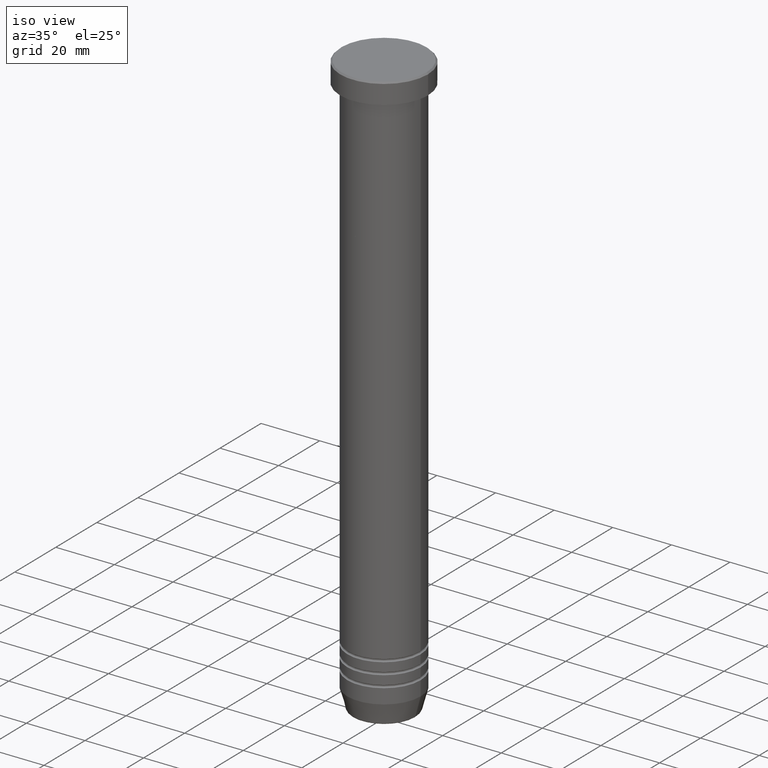
[diagram: clean part render]
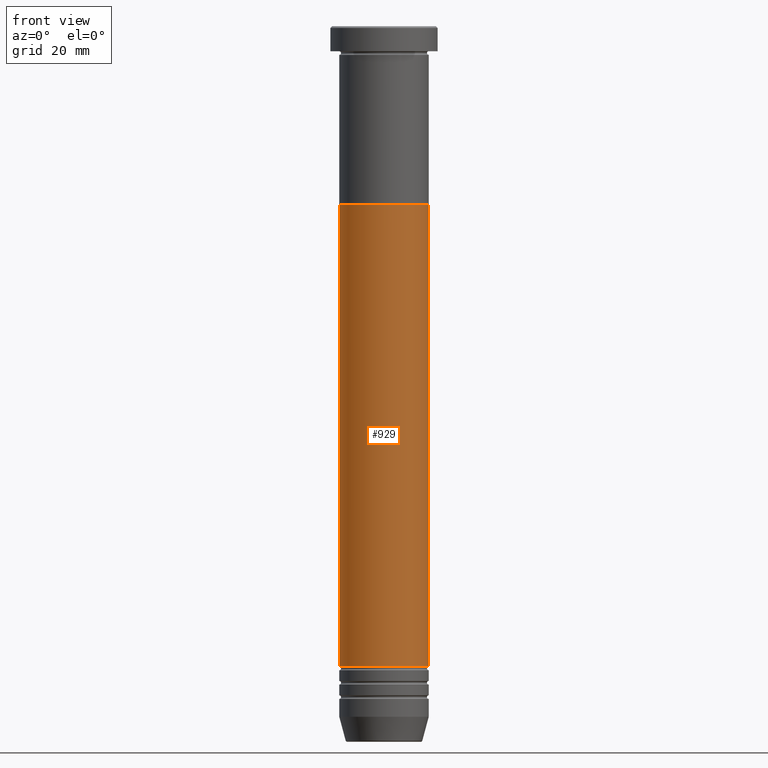
[diagram: tour spotlight — one face highlighted and labeled with its STEP entity id]
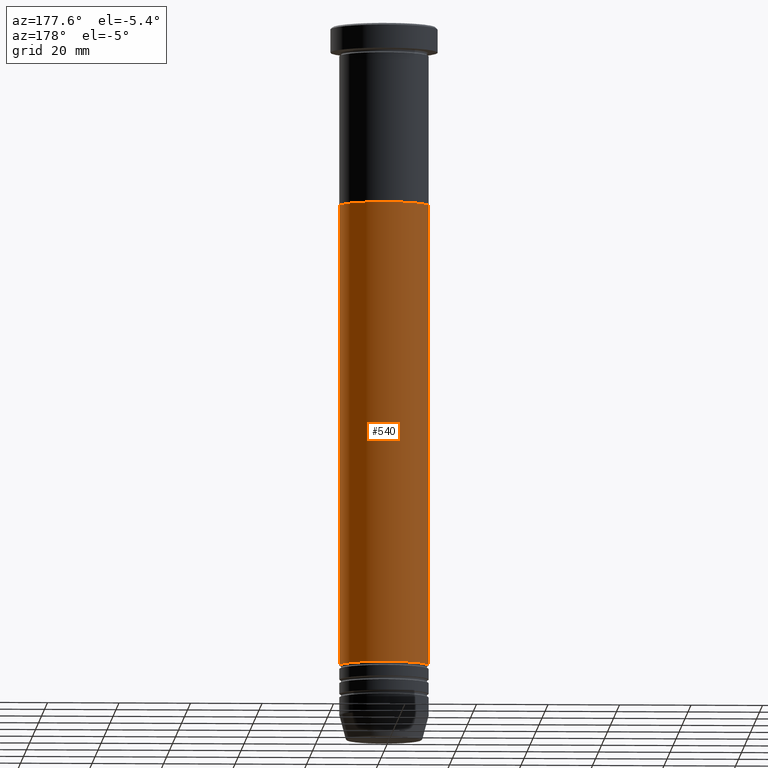
[diagram: tour spotlight — one face highlighted and labeled with its STEP entity id]
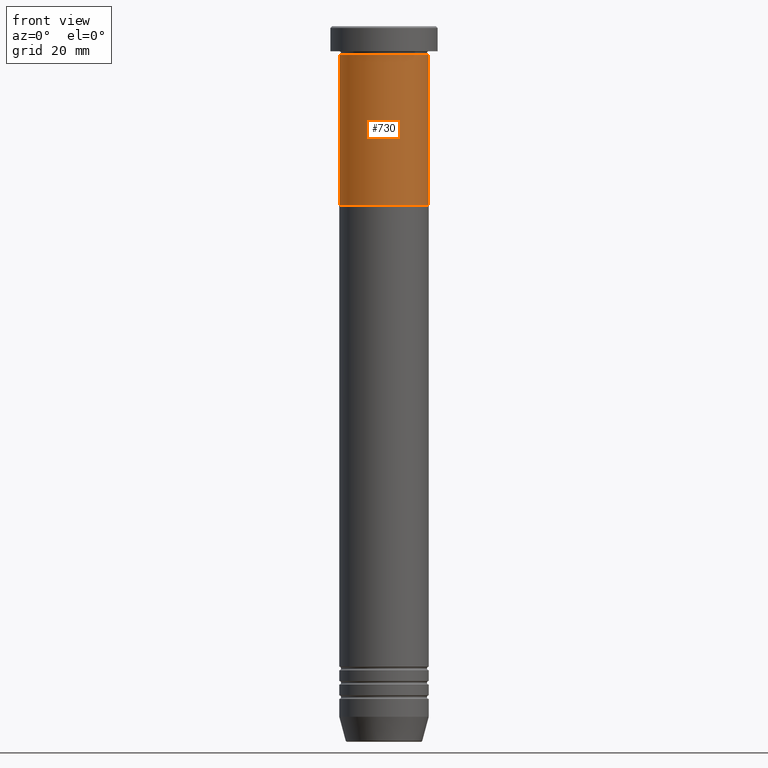
[diagram: tour spotlight — one face highlighted and labeled with its STEP entity id]
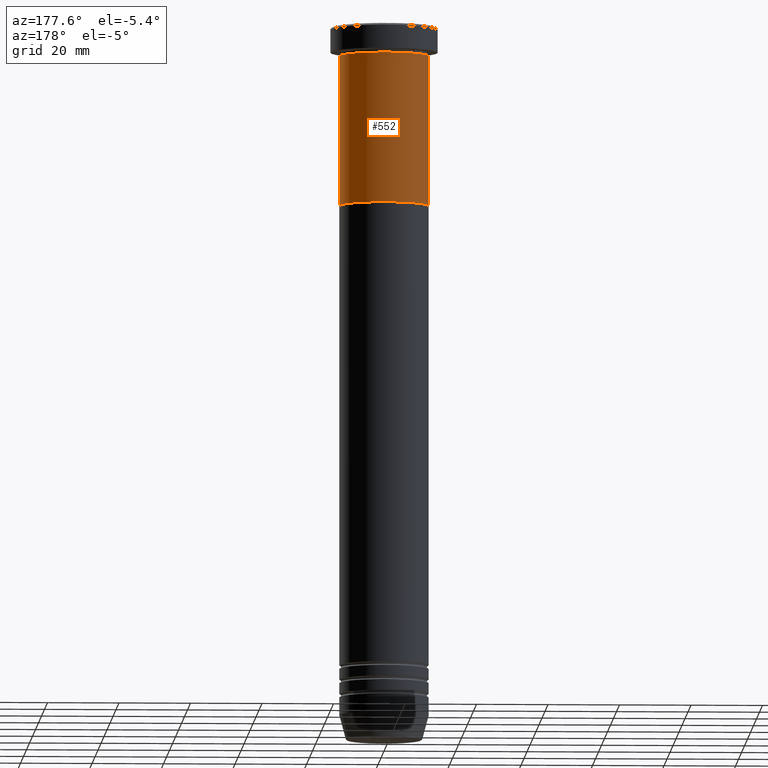
[diagram: tour spotlight — one face highlighted and labeled with its STEP entity id]
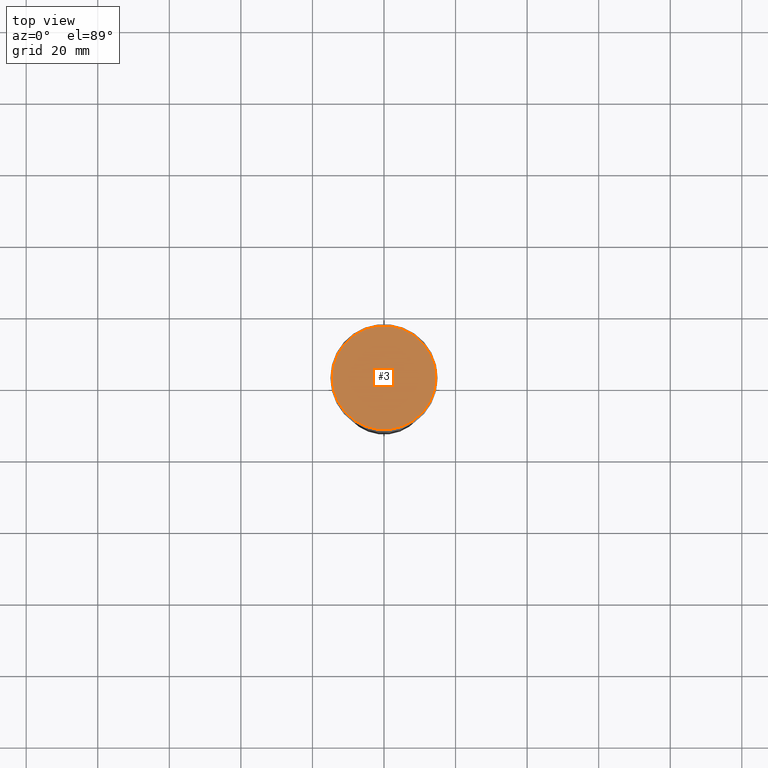
[diagram: tour spotlight — one face highlighted and labeled with its STEP entity id]
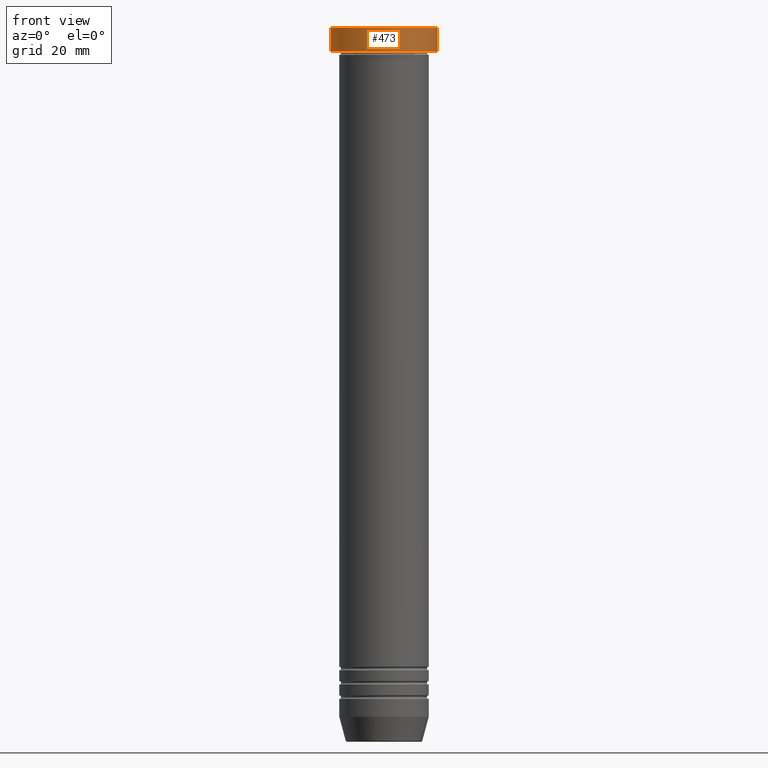
[diagram: tour spotlight — one face highlighted and labeled with its STEP entity id]
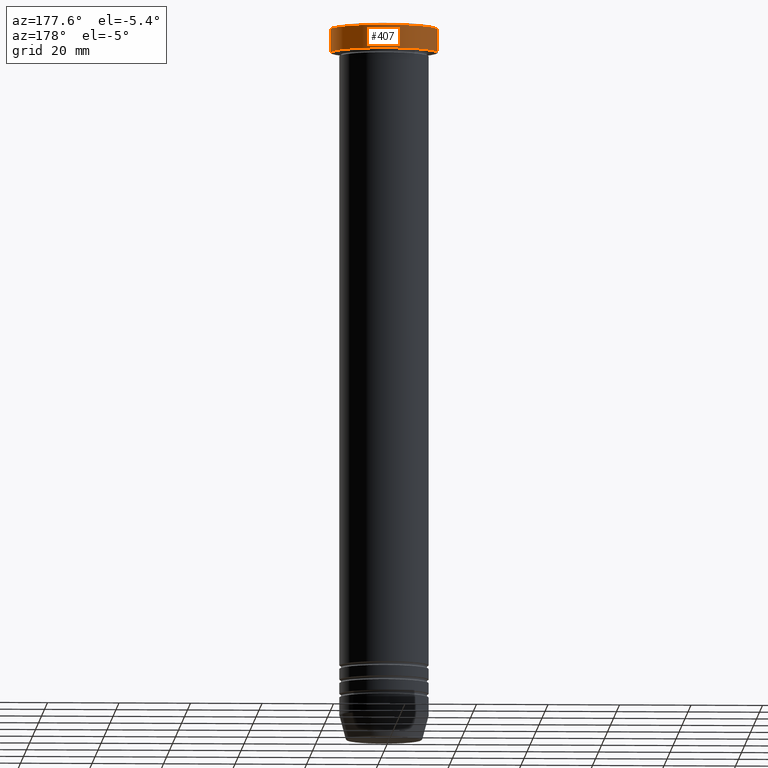
[diagram: tour spotlight — one face highlighted and labeled with its STEP entity id]
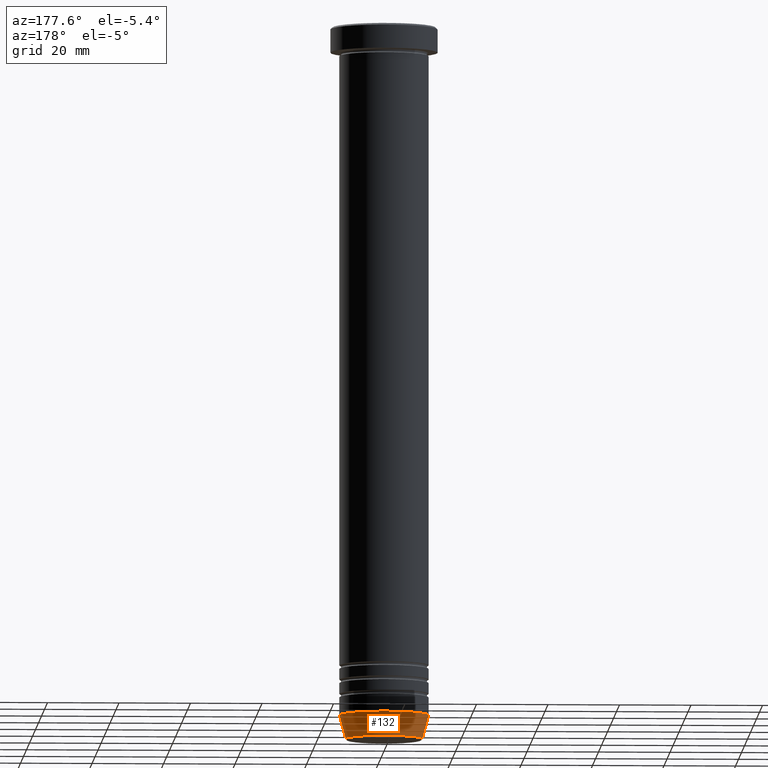
[diagram: tour spotlight — one face highlighted and labeled with its STEP entity id]
A machine part: a face-by-face anatomy tour. The part has 39 B-rep faces; the first image is the clean iso view, then the 8 largest visible faces are spotlighted one at a time (largest first), each with its STEP entity span.

Face 1 — front view, entity #929. In plain terms, the highlighted cylindrical surface (partial cylindrical patch) has radius 12.5 mm, axis along (-0, -0, 1).
Definition (entity closure, byte-faithful):
#4 = CARTESIAN_POINT ( 'NONE',  ( 12.49999999999999645, 0.000000000000000000, 0.000000000000000000 ) ) ;
#27 = CARTESIAN_POINT ( 'NONE',  ( -12.50000000000000000, 1.530808498934191521E-15, -50.00000000000000000 ) ) ;
#89 = EDGE_CURVE ( 'NONE', #199, #162, #415, .T. ) ;
#91 = VECTOR ( 'NONE', #216, 1000.000000000000000 ) ;
#109 = AXIS2_PLACEMENT_3D ( 'NONE', #254, #320, #241 ) ;
#134 = EDGE_CURVE ( 'NONE', #655, #162, #532, .T. ) ;
#162 = VERTEX_POINT ( 'NONE', #729 ) ;
#166 = VERTEX_POINT ( 'NONE', #920 ) ;
#174 = CYLINDRICAL_SURFACE ( 'NONE', #109, 12.49999999999999645 ) ;
#192 = CARTESIAN_POINT ( 'NONE',  ( 12.49999999999999289, 0.000000000000000000, -179.0000000000000000 ) ) ;
#199 = VERTEX_POINT ( 'NONE', #192 ) ;
#202 = ORIENTED_EDGE ( 'NONE', *, *, #661, .T. ) ;
#210 = CARTESIAN_POINT ( 'NONE',  ( -12.49999999999999645, 1.530808498934191127E-15, 0.000000000000000000 ) ) ;
#216 = DIRECTION ( 'NONE',  ( -0.000000000000000000, -0.000000000000000000, 1.000000000000000000 ) ) ;
#241 = DIRECTION ( 'NONE',  ( 1.000000000000000000, 0.000000000000000000, 0.000000000000000000 ) ) ;
#254 = CARTESIAN_POINT ( 'NONE',  ( 0.000000000000000000, 0.000000000000000000, 0.000000000000000000 ) ) ;
#262 = DIRECTION ( 'NONE',  ( 1.000000000000000000, 0.000000000000000000, 0.000000000000000000 ) ) ;
#283 = DIRECTION ( 'NONE',  ( 1.000000000000000000, 0.000000000000000000, 0.000000000000000000 ) ) ;
#309 = VECTOR ( 'NONE', #484, 1000.000000000000000 ) ;
#320 = DIRECTION ( 'NONE',  ( -0.000000000000000000, -0.000000000000000000, 1.000000000000000000 ) ) ;
#322 = CARTESIAN_POINT ( 'NONE',  ( 0.000000000000000000, 0.000000000000000000, -50.00000000000000000 ) ) ;
#330 = CIRCLE ( 'NONE', #756, 12.49999999999999289 ) ;
#415 = LINE ( 'NONE', #4, #309 ) ;
#484 = DIRECTION ( 'NONE',  ( -0.000000000000000000, -0.000000000000000000, 1.000000000000000000 ) ) ;
#485 = ORIENTED_EDGE ( 'NONE', *, *, #811, .F. ) ;
#506 = CARTESIAN_POINT ( 'NONE',  ( 0.000000000000000000, 0.000000000000000000, -179.0000000000000000 ) ) ;
#532 = CIRCLE ( 'NONE', #732, 12.50000000000000000 ) ;
#655 = VERTEX_POINT ( 'NONE', #27 ) ;
#661 = EDGE_CURVE ( 'NONE', #166, #199, #330, .T. ) ;
#729 = CARTESIAN_POINT ( 'NONE',  ( 12.50000000000000000, 0.000000000000000000, -50.00000000000000000 ) ) ;
#732 = AXIS2_PLACEMENT_3D ( 'NONE', #322, #812, #262 ) ;
#749 = ORIENTED_EDGE ( 'NONE', *, *, #134, .F. ) ;
#756 = AXIS2_PLACEMENT_3D ( 'NONE', #506, #760, #283 ) ;
#760 = DIRECTION ( 'NONE',  ( -0.000000000000000000, -0.000000000000000000, 1.000000000000000000 ) ) ;
#809 = FACE_OUTER_BOUND ( 'NONE', #1053, .T. ) ;
#811 = EDGE_CURVE ( 'NONE', #166, #655, #1037, .T. ) ;
#812 = DIRECTION ( 'NONE',  ( -0.000000000000000000, -0.000000000000000000, 1.000000000000000000 ) ) ;
#880 = ORIENTED_EDGE ( 'NONE', *, *, #89, .T. ) ;
#920 = CARTESIAN_POINT ( 'NONE',  ( -12.49999999999999289, 1.530808498934190930E-15, -179.0000000000000000 ) ) ;
#929 = ADVANCED_FACE ( 'NONE', ( #809 ), #174, .T. ) ;
#1037 = LINE ( 'NONE', #210, #91 ) ;
#1053 = EDGE_LOOP ( 'NONE', ( #485, #202, #880, #749 ) ) ;

Face 2 — auxiliary view, entity #540. In plain terms, the highlighted cylindrical surface (partial cylindrical patch) has radius 12.5 mm, axis along (-0, -0, 1).
Definition (entity closure, byte-faithful):
#4 = CARTESIAN_POINT ( 'NONE',  ( 12.49999999999999645, 0.000000000000000000, 0.000000000000000000 ) ) ;
#27 = CARTESIAN_POINT ( 'NONE',  ( -12.50000000000000000, 1.530808498934191521E-15, -50.00000000000000000 ) ) ;
#42 = AXIS2_PLACEMENT_3D ( 'NONE', #650, #799, #988 ) ;
#89 = EDGE_CURVE ( 'NONE', #199, #162, #415, .T. ) ;
#91 = VECTOR ( 'NONE', #216, 1000.000000000000000 ) ;
#92 = ORIENTED_EDGE ( 'NONE', *, *, #89, .F. ) ;
#96 = EDGE_LOOP ( 'NONE', ( #345, #932, #572, #92 ) ) ;
#141 = CARTESIAN_POINT ( 'NONE',  ( 0.000000000000000000, 0.000000000000000000, -50.00000000000000000 ) ) ;
#162 = VERTEX_POINT ( 'NONE', #729 ) ;
#166 = VERTEX_POINT ( 'NONE', #920 ) ;
#192 = CARTESIAN_POINT ( 'NONE',  ( 12.49999999999999289, 0.000000000000000000, -179.0000000000000000 ) ) ;
#199 = VERTEX_POINT ( 'NONE', #192 ) ;
#210 = CARTESIAN_POINT ( 'NONE',  ( -12.49999999999999645, 1.530808498934191127E-15, 0.000000000000000000 ) ) ;
#216 = DIRECTION ( 'NONE',  ( -0.000000000000000000, -0.000000000000000000, 1.000000000000000000 ) ) ;
#243 = DIRECTION ( 'NONE',  ( 1.000000000000000000, 0.000000000000000000, 0.000000000000000000 ) ) ;
#295 = AXIS2_PLACEMENT_3D ( 'NONE', #1042, #559, #243 ) ;
#309 = VECTOR ( 'NONE', #484, 1000.000000000000000 ) ;
#345 = ORIENTED_EDGE ( 'NONE', *, *, #462, .T. ) ;
#394 = CIRCLE ( 'NONE', #968, 12.50000000000000000 ) ;
#400 = CYLINDRICAL_SURFACE ( 'NONE', #42, 12.49999999999999645 ) ;
#415 = LINE ( 'NONE', #4, #309 ) ;
#439 = EDGE_CURVE ( 'NONE', #162, #655, #394, .T. ) ;
#452 = DIRECTION ( 'NONE',  ( -0.000000000000000000, -0.000000000000000000, 1.000000000000000000 ) ) ;
#462 = EDGE_CURVE ( 'NONE', #199, #166, #715, .T. ) ;
#484 = DIRECTION ( 'NONE',  ( -0.000000000000000000, -0.000000000000000000, 1.000000000000000000 ) ) ;
#498 = FACE_OUTER_BOUND ( 'NONE', #96, .T. ) ;
#540 = ADVANCED_FACE ( 'NONE', ( #498 ), #400, .T. ) ;
#559 = DIRECTION ( 'NONE',  ( -0.000000000000000000, -0.000000000000000000, 1.000000000000000000 ) ) ;
#572 = ORIENTED_EDGE ( 'NONE', *, *, #439, .F. ) ;
#650 = CARTESIAN_POINT ( 'NONE',  ( 0.000000000000000000, 0.000000000000000000, 0.000000000000000000 ) ) ;
#655 = VERTEX_POINT ( 'NONE', #27 ) ;
#715 = CIRCLE ( 'NONE', #295, 12.49999999999999289 ) ;
#729 = CARTESIAN_POINT ( 'NONE',  ( 12.50000000000000000, 0.000000000000000000, -50.00000000000000000 ) ) ;
#776 = DIRECTION ( 'NONE',  ( 1.000000000000000000, 0.000000000000000000, 0.000000000000000000 ) ) ;
#799 = DIRECTION ( 'NONE',  ( -0.000000000000000000, -0.000000000000000000, 1.000000000000000000 ) ) ;
#811 = EDGE_CURVE ( 'NONE', #166, #655, #1037, .T. ) ;
#920 = CARTESIAN_POINT ( 'NONE',  ( -12.49999999999999289, 1.530808498934190930E-15, -179.0000000000000000 ) ) ;
#932 = ORIENTED_EDGE ( 'NONE', *, *, #811, .T. ) ;
#968 = AXIS2_PLACEMENT_3D ( 'NONE', #141, #452, #776 ) ;
#988 = DIRECTION ( 'NONE',  ( 1.000000000000000000, 0.000000000000000000, 0.000000000000000000 ) ) ;
#1037 = LINE ( 'NONE', #210, #91 ) ;
#1042 = CARTESIAN_POINT ( 'NONE',  ( 0.000000000000000000, 0.000000000000000000, -179.0000000000000000 ) ) ;

Face 3 — front view, entity #730. In plain terms, the highlighted cylindrical surface (partial cylindrical patch) has radius 12.5 mm, axis along (-0, -0, 1).
Definition (entity closure, byte-faithful):
#8 = VERTEX_POINT ( 'NONE', #555 ) ;
#38 = DIRECTION ( 'NONE',  ( -0.000000000000000000, -0.000000000000000000, 1.000000000000000000 ) ) ;
#75 = AXIS2_PLACEMENT_3D ( 'NONE', #742, #682, #763 ) ;
#173 = ORIENTED_EDGE ( 'NONE', *, *, #282, .F. ) ;
#196 = FACE_OUTER_BOUND ( 'NONE', #454, .T. ) ;
#201 = DIRECTION ( 'NONE',  ( -0.000000000000000000, -0.000000000000000000, 1.000000000000000000 ) ) ;
#270 = CARTESIAN_POINT ( 'NONE',  ( -12.50000000000000000, 1.530808498934191521E-15, -50.00000000000000000 ) ) ;
#282 = EDGE_CURVE ( 'NONE', #456, #8, #801, .T. ) ;
#312 = LINE ( 'NONE', #862, #701 ) ;
#323 = EDGE_CURVE ( 'NONE', #852, #8, #1038, .T. ) ;
#326 = VECTOR ( 'NONE', #374, 1000.000000000000000 ) ;
#344 = DIRECTION ( 'NONE',  ( 1.000000000000000000, 0.000000000000000000, 0.000000000000000000 ) ) ;
#347 = AXIS2_PLACEMENT_3D ( 'NONE', #440, #38, #1007 ) ;
#373 = EDGE_CURVE ( 'NONE', #721, #456, #312, .T. ) ;
#374 = DIRECTION ( 'NONE',  ( -0.000000000000000000, -0.000000000000000000, 1.000000000000000000 ) ) ;
#440 = CARTESIAN_POINT ( 'NONE',  ( 0.000000000000000000, 0.000000000000000000, -8.000000000000000000 ) ) ;
#454 = EDGE_LOOP ( 'NONE', ( #797, #1028, #504, #173 ) ) ;
#456 = VERTEX_POINT ( 'NONE', #791 ) ;
#458 = CARTESIAN_POINT ( 'NONE',  ( 12.50000000000000000, 0.000000000000000000, 0.000000000000000000 ) ) ;
#504 = ORIENTED_EDGE ( 'NONE', *, *, #323, .T. ) ;
#543 = DIRECTION ( 'NONE',  ( -0.000000000000000000, -0.000000000000000000, 1.000000000000000000 ) ) ;
#555 = CARTESIAN_POINT ( 'NONE',  ( 12.50000000000000000, 0.000000000000000000, -8.000000000000000000 ) ) ;
#682 = DIRECTION ( 'NONE',  ( -0.000000000000000000, -0.000000000000000000, 1.000000000000000000 ) ) ;
#684 = CARTESIAN_POINT ( 'NONE',  ( 0.000000000000000000, 0.000000000000000000, 0.000000000000000000 ) ) ;
#701 = VECTOR ( 'NONE', #543, 1000.000000000000000 ) ;
#721 = VERTEX_POINT ( 'NONE', #270 ) ;
#730 = ADVANCED_FACE ( 'NONE', ( #196 ), #748, .T. ) ;
#742 = CARTESIAN_POINT ( 'NONE',  ( 0.000000000000000000, 0.000000000000000000, -50.00000000000000000 ) ) ;
#748 = CYLINDRICAL_SURFACE ( 'NONE', #1003, 12.50000000000000000 ) ;
#763 = DIRECTION ( 'NONE',  ( 1.000000000000000000, 0.000000000000000000, 0.000000000000000000 ) ) ;
#791 = CARTESIAN_POINT ( 'NONE',  ( -12.50000000000000000, 1.530808498934191521E-15, -8.000000000000000000 ) ) ;
#797 = ORIENTED_EDGE ( 'NONE', *, *, #373, .F. ) ;
#801 = CIRCLE ( 'NONE', #347, 12.50000000000000000 ) ;
#852 = VERTEX_POINT ( 'NONE', #865 ) ;
#862 = CARTESIAN_POINT ( 'NONE',  ( -12.50000000000000000, 1.530808498934191521E-15, 0.000000000000000000 ) ) ;
#865 = CARTESIAN_POINT ( 'NONE',  ( 12.50000000000000000, 0.000000000000000000, -50.00000000000000000 ) ) ;
#877 = CIRCLE ( 'NONE', #75, 12.50000000000000000 ) ;
#1003 = AXIS2_PLACEMENT_3D ( 'NONE', #684, #201, #344 ) ;
#1007 = DIRECTION ( 'NONE',  ( 1.000000000000000000, 0.000000000000000000, 0.000000000000000000 ) ) ;
#1028 = ORIENTED_EDGE ( 'NONE', *, *, #1056, .T. ) ;
#1038 = LINE ( 'NONE', #458, #326 ) ;
#1056 = EDGE_CURVE ( 'NONE', #721, #852, #877, .T. ) ;

Face 4 — auxiliary view, entity #552. In plain terms, the highlighted cylindrical surface (partial cylindrical patch) has radius 12.5 mm, axis along (-0, -0, 1).
Definition (entity closure, byte-faithful):
#8 = VERTEX_POINT ( 'NONE', #555 ) ;
#65 = CARTESIAN_POINT ( 'NONE',  ( 0.000000000000000000, 0.000000000000000000, -8.000000000000000000 ) ) ;
#101 = CARTESIAN_POINT ( 'NONE',  ( 0.000000000000000000, 0.000000000000000000, -50.00000000000000000 ) ) ;
#145 = ORIENTED_EDGE ( 'NONE', *, *, #404, .F. ) ;
#211 = EDGE_LOOP ( 'NONE', ( #391, #232, #145, #777 ) ) ;
#215 = EDGE_CURVE ( 'NONE', #852, #721, #277, .T. ) ;
#232 = ORIENTED_EDGE ( 'NONE', *, *, #373, .T. ) ;
#255 = DIRECTION ( 'NONE',  ( 1.000000000000000000, 0.000000000000000000, 0.000000000000000000 ) ) ;
#270 = CARTESIAN_POINT ( 'NONE',  ( -12.50000000000000000, 1.530808498934191521E-15, -50.00000000000000000 ) ) ;
#277 = CIRCLE ( 'NONE', #911, 12.50000000000000000 ) ;
#312 = LINE ( 'NONE', #862, #701 ) ;
#323 = EDGE_CURVE ( 'NONE', #852, #8, #1038, .T. ) ;
#326 = VECTOR ( 'NONE', #374, 1000.000000000000000 ) ;
#334 = FACE_OUTER_BOUND ( 'NONE', #211, .T. ) ;
#373 = EDGE_CURVE ( 'NONE', #721, #456, #312, .T. ) ;
#374 = DIRECTION ( 'NONE',  ( -0.000000000000000000, -0.000000000000000000, 1.000000000000000000 ) ) ;
#391 = ORIENTED_EDGE ( 'NONE', *, *, #215, .T. ) ;
#404 = EDGE_CURVE ( 'NONE', #8, #456, #984, .T. ) ;
#456 = VERTEX_POINT ( 'NONE', #791 ) ;
#458 = CARTESIAN_POINT ( 'NONE',  ( 12.50000000000000000, 0.000000000000000000, 0.000000000000000000 ) ) ;
#508 = DIRECTION ( 'NONE',  ( 1.000000000000000000, 0.000000000000000000, 0.000000000000000000 ) ) ;
#543 = DIRECTION ( 'NONE',  ( -0.000000000000000000, -0.000000000000000000, 1.000000000000000000 ) ) ;
#552 = ADVANCED_FACE ( 'NONE', ( #334 ), #643, .T. ) ;
#555 = CARTESIAN_POINT ( 'NONE',  ( 12.50000000000000000, 0.000000000000000000, -8.000000000000000000 ) ) ;
#588 = DIRECTION ( 'NONE',  ( -0.000000000000000000, -0.000000000000000000, 1.000000000000000000 ) ) ;
#628 = DIRECTION ( 'NONE',  ( -0.000000000000000000, -0.000000000000000000, 1.000000000000000000 ) ) ;
#643 = CYLINDRICAL_SURFACE ( 'NONE', #912, 12.50000000000000000 ) ;
#670 = AXIS2_PLACEMENT_3D ( 'NONE', #65, #628, #698 ) ;
#698 = DIRECTION ( 'NONE',  ( 1.000000000000000000, 0.000000000000000000, 0.000000000000000000 ) ) ;
#701 = VECTOR ( 'NONE', #543, 1000.000000000000000 ) ;
#721 = VERTEX_POINT ( 'NONE', #270 ) ;
#777 = ORIENTED_EDGE ( 'NONE', *, *, #323, .F. ) ;
#791 = CARTESIAN_POINT ( 'NONE',  ( -12.50000000000000000, 1.530808498934191521E-15, -8.000000000000000000 ) ) ;
#852 = VERTEX_POINT ( 'NONE', #865 ) ;
#862 = CARTESIAN_POINT ( 'NONE',  ( -12.50000000000000000, 1.530808498934191521E-15, 0.000000000000000000 ) ) ;
#865 = CARTESIAN_POINT ( 'NONE',  ( 12.50000000000000000, 0.000000000000000000, -50.00000000000000000 ) ) ;
#911 = AXIS2_PLACEMENT_3D ( 'NONE', #101, #588, #508 ) ;
#912 = AXIS2_PLACEMENT_3D ( 'NONE', #981, #994, #255 ) ;
#981 = CARTESIAN_POINT ( 'NONE',  ( 0.000000000000000000, 0.000000000000000000, 0.000000000000000000 ) ) ;
#984 = CIRCLE ( 'NONE', #670, 12.50000000000000000 ) ;
#994 = DIRECTION ( 'NONE',  ( -0.000000000000000000, -0.000000000000000000, 1.000000000000000000 ) ) ;
#1038 = LINE ( 'NONE', #458, #326 ) ;

Face 5 — top view, entity #3. In plain terms, the highlighted planar face has unit normal (0, -0, 1).
Definition (entity closure, byte-faithful):
#3 = ADVANCED_FACE ( 'NONE', ( #477 ), #1051, .T. ) ;
#118 = DIRECTION ( 'NONE',  ( -0.000000000000000000, -0.000000000000000000, 1.000000000000000000 ) ) ;
#157 = CIRCLE ( 'NONE', #753, 14.50000000000001066 ) ;
#235 = DIRECTION ( 'NONE',  ( 0.000000000000000000, -0.000000000000000000, 1.000000000000000000 ) ) ;
#247 = VERTEX_POINT ( 'NONE', #771 ) ;
#302 = CARTESIAN_POINT ( 'NONE',  ( 14.50000000000001066, 1.806354028742346591E-15, 0.000000000000000000 ) ) ;
#315 = CARTESIAN_POINT ( 'NONE',  ( 0.000000000000000000, 0.000000000000000000, 0.000000000000000000 ) ) ;
#324 = EDGE_LOOP ( 'NONE', ( #989, #765 ) ) ;
#327 = DIRECTION ( 'NONE',  ( 1.000000000000000000, 0.000000000000000000, 0.000000000000000000 ) ) ;
#379 = CIRCLE ( 'NONE', #733, 14.50000000000001066 ) ;
#383 = VERTEX_POINT ( 'NONE', #302 ) ;
#410 = AXIS2_PLACEMENT_3D ( 'NONE', #315, #235, #800 ) ;
#476 = DIRECTION ( 'NONE',  ( -0.000000000000000000, -0.000000000000000000, 1.000000000000000000 ) ) ;
#477 = FACE_OUTER_BOUND ( 'NONE', #324, .T. ) ;
#488 = CARTESIAN_POINT ( 'NONE',  ( 0.000000000000000000, 0.000000000000000000, 0.000000000000000000 ) ) ;
#521 = EDGE_CURVE ( 'NONE', #383, #247, #379, .T. ) ;
#585 = CARTESIAN_POINT ( 'NONE',  ( 0.000000000000000000, 0.000000000000000000, 0.000000000000000000 ) ) ;
#636 = EDGE_CURVE ( 'NONE', #247, #383, #157, .T. ) ;
#733 = AXIS2_PLACEMENT_3D ( 'NONE', #488, #476, #327 ) ;
#753 = AXIS2_PLACEMENT_3D ( 'NONE', #585, #118, #832 ) ;
#765 = ORIENTED_EDGE ( 'NONE', *, *, #521, .T. ) ;
#771 = CARTESIAN_POINT ( 'NONE',  ( -14.50000000000001066, 0.000000000000000000, 0.000000000000000000 ) ) ;
#800 = DIRECTION ( 'NONE',  ( 1.000000000000000000, 0.000000000000000000, 0.000000000000000000 ) ) ;
#832 = DIRECTION ( 'NONE',  ( 1.000000000000000000, 0.000000000000000000, 0.000000000000000000 ) ) ;
#989 = ORIENTED_EDGE ( 'NONE', *, *, #636, .T. ) ;
#1051 = PLANE ( 'NONE',  #410 ) ;

Face 6 — front view, entity #473. In plain terms, the highlighted cylindrical surface (partial cylindrical patch) has radius 15 mm, axis along (-0, -0, 1).
Definition (entity closure, byte-faithful):
#31 = DIRECTION ( 'NONE',  ( -0.000000000000000000, -0.000000000000000000, 1.000000000000000000 ) ) ;
#41 = VECTOR ( 'NONE', #982, 1000.000000000000000 ) ;
#78 = CYLINDRICAL_SURFACE ( 'NONE', #1019, 15.00000000000000000 ) ;
#114 = DIRECTION ( 'NONE',  ( 0.000000000000000000, 0.000000000000000000, -1.000000000000000000 ) ) ;
#147 = EDGE_CURVE ( 'NONE', #586, #433, #660, .T. ) ;
#152 = CARTESIAN_POINT ( 'NONE',  ( -15.00000000000000000, 1.836970198721029589E-15, -0.4999999999999831246 ) ) ;
#187 = EDGE_CURVE ( 'NONE', #387, #586, #738, .T. ) ;
#197 = ORIENTED_EDGE ( 'NONE', *, *, #1040, .F. ) ;
#238 = CARTESIAN_POINT ( 'NONE',  ( 0.000000000000000000, 0.000000000000000000, 0.000000000000000000 ) ) ;
#266 = LINE ( 'NONE', #922, #350 ) ;
#331 = ORIENTED_EDGE ( 'NONE', *, *, #593, .T. ) ;
#348 = CIRCLE ( 'NONE', #953, 15.00000000000000000 ) ;
#350 = VECTOR ( 'NONE', #31, 1000.000000000000000 ) ;
#361 = DIRECTION ( 'NONE',  ( 1.000000000000000000, 0.000000000000000000, 0.000000000000000000 ) ) ;
#387 = VERTEX_POINT ( 'NONE', #470 ) ;
#411 = DIRECTION ( 'NONE',  ( -0.000000000000000000, -0.000000000000000000, 1.000000000000000000 ) ) ;
#433 = VERTEX_POINT ( 'NONE', #973 ) ;
#470 = CARTESIAN_POINT ( 'NONE',  ( -15.00000000000000000, 1.836970198721029589E-15, -6.999999999999998224 ) ) ;
#473 = ADVANCED_FACE ( 'NONE', ( #977 ), #78, .T. ) ;
#531 = DIRECTION ( 'NONE',  ( 1.000000000000000000, 0.000000000000000000, 0.000000000000000000 ) ) ;
#554 = CARTESIAN_POINT ( 'NONE',  ( 15.00000000000000000, 0.000000000000000000, -6.999999999999998224 ) ) ;
#577 = AXIS2_PLACEMENT_3D ( 'NONE', #926, #849, #531 ) ;
#586 = VERTEX_POINT ( 'NONE', #554 ) ;
#593 = EDGE_CURVE ( 'NONE', #433, #1036, #348, .T. ) ;
#644 = CARTESIAN_POINT ( 'NONE',  ( 15.00000000000000000, 0.000000000000000000, 0.000000000000000000 ) ) ;
#658 = DIRECTION ( 'NONE',  ( 1.000000000000000000, 0.000000000000000000, 0.000000000000000000 ) ) ;
#660 = LINE ( 'NONE', #644, #41 ) ;
#668 = CARTESIAN_POINT ( 'NONE',  ( 0.000000000000000000, 0.000000000000000000, -0.4999999999999831246 ) ) ;
#738 = CIRCLE ( 'NONE', #577, 15.00000000000000000 ) ;
#755 = EDGE_LOOP ( 'NONE', ( #197, #792, #937, #331 ) ) ;
#792 = ORIENTED_EDGE ( 'NONE', *, *, #187, .T. ) ;
#849 = DIRECTION ( 'NONE',  ( -0.000000000000000000, -0.000000000000000000, 1.000000000000000000 ) ) ;
#922 = CARTESIAN_POINT ( 'NONE',  ( -15.00000000000000000, 1.836970198721029589E-15, 0.000000000000000000 ) ) ;
#926 = CARTESIAN_POINT ( 'NONE',  ( 0.000000000000000000, 0.000000000000000000, -6.999999999999998224 ) ) ;
#937 = ORIENTED_EDGE ( 'NONE', *, *, #147, .T. ) ;
#953 = AXIS2_PLACEMENT_3D ( 'NONE', #668, #114, #361 ) ;
#973 = CARTESIAN_POINT ( 'NONE',  ( 15.00000000000000000, 0.000000000000000000, -0.4999999999999831246 ) ) ;
#977 = FACE_OUTER_BOUND ( 'NONE', #755, .T. ) ;
#982 = DIRECTION ( 'NONE',  ( -0.000000000000000000, -0.000000000000000000, 1.000000000000000000 ) ) ;
#1019 = AXIS2_PLACEMENT_3D ( 'NONE', #238, #411, #658 ) ;
#1036 = VERTEX_POINT ( 'NONE', #152 ) ;
#1040 = EDGE_CURVE ( 'NONE', #387, #1036, #266, .T. ) ;

Face 7 — auxiliary view, entity #407. In plain terms, the highlighted cylindrical surface (partial cylindrical patch) has radius 15 mm, axis along (-0, -0, 1).
Definition (entity closure, byte-faithful):
#31 = DIRECTION ( 'NONE',  ( -0.000000000000000000, -0.000000000000000000, 1.000000000000000000 ) ) ;
#36 = CARTESIAN_POINT ( 'NONE',  ( 0.000000000000000000, 0.000000000000000000, -6.999999999999998224 ) ) ;
#41 = VECTOR ( 'NONE', #982, 1000.000000000000000 ) ;
#74 = AXIS2_PLACEMENT_3D ( 'NONE', #36, #354, #595 ) ;
#105 = ORIENTED_EDGE ( 'NONE', *, *, #147, .F. ) ;
#147 = EDGE_CURVE ( 'NONE', #586, #433, #660, .T. ) ;
#152 = CARTESIAN_POINT ( 'NONE',  ( -15.00000000000000000, 1.836970198721029589E-15, -0.4999999999999831246 ) ) ;
#191 = ORIENTED_EDGE ( 'NONE', *, *, #1040, .T. ) ;
#266 = LINE ( 'NONE', #922, #350 ) ;
#267 = CARTESIAN_POINT ( 'NONE',  ( 0.000000000000000000, 0.000000000000000000, -0.4999999999999831246 ) ) ;
#291 = CYLINDRICAL_SURFACE ( 'NONE', #855, 15.00000000000000000 ) ;
#350 = VECTOR ( 'NONE', #31, 1000.000000000000000 ) ;
#354 = DIRECTION ( 'NONE',  ( -0.000000000000000000, -0.000000000000000000, 1.000000000000000000 ) ) ;
#376 = FACE_OUTER_BOUND ( 'NONE', #861, .T. ) ;
#385 = DIRECTION ( 'NONE',  ( -0.000000000000000000, -0.000000000000000000, 1.000000000000000000 ) ) ;
#387 = VERTEX_POINT ( 'NONE', #470 ) ;
#407 = ADVANCED_FACE ( 'NONE', ( #376 ), #291, .T. ) ;
#424 = DIRECTION ( 'NONE',  ( 0.000000000000000000, 0.000000000000000000, -1.000000000000000000 ) ) ;
#433 = VERTEX_POINT ( 'NONE', #973 ) ;
#470 = CARTESIAN_POINT ( 'NONE',  ( -15.00000000000000000, 1.836970198721029589E-15, -6.999999999999998224 ) ) ;
#518 = DIRECTION ( 'NONE',  ( 1.000000000000000000, 0.000000000000000000, 0.000000000000000000 ) ) ;
#554 = CARTESIAN_POINT ( 'NONE',  ( 15.00000000000000000, 0.000000000000000000, -6.999999999999998224 ) ) ;
#586 = VERTEX_POINT ( 'NONE', #554 ) ;
#595 = DIRECTION ( 'NONE',  ( 1.000000000000000000, 0.000000000000000000, 0.000000000000000000 ) ) ;
#612 = DIRECTION ( 'NONE',  ( 1.000000000000000000, 0.000000000000000000, 0.000000000000000000 ) ) ;
#613 = AXIS2_PLACEMENT_3D ( 'NONE', #267, #424, #518 ) ;
#625 = EDGE_CURVE ( 'NONE', #1036, #433, #837, .T. ) ;
#644 = CARTESIAN_POINT ( 'NONE',  ( 15.00000000000000000, 0.000000000000000000, 0.000000000000000000 ) ) ;
#660 = LINE ( 'NONE', #644, #41 ) ;
#663 = ORIENTED_EDGE ( 'NONE', *, *, #625, .T. ) ;
#725 = EDGE_CURVE ( 'NONE', #586, #387, #856, .T. ) ;
#837 = CIRCLE ( 'NONE', #613, 15.00000000000000000 ) ;
#855 = AXIS2_PLACEMENT_3D ( 'NONE', #961, #385, #612 ) ;
#856 = CIRCLE ( 'NONE', #74, 15.00000000000000000 ) ;
#861 = EDGE_LOOP ( 'NONE', ( #908, #191, #663, #105 ) ) ;
#908 = ORIENTED_EDGE ( 'NONE', *, *, #725, .T. ) ;
#922 = CARTESIAN_POINT ( 'NONE',  ( -15.00000000000000000, 1.836970198721029589E-15, 0.000000000000000000 ) ) ;
#961 = CARTESIAN_POINT ( 'NONE',  ( 0.000000000000000000, 0.000000000000000000, 0.000000000000000000 ) ) ;
#973 = CARTESIAN_POINT ( 'NONE',  ( 15.00000000000000000, 0.000000000000000000, -0.4999999999999831246 ) ) ;
#982 = DIRECTION ( 'NONE',  ( -0.000000000000000000, -0.000000000000000000, 1.000000000000000000 ) ) ;
#1036 = VERTEX_POINT ( 'NONE', #152 ) ;
#1040 = EDGE_CURVE ( 'NONE', #387, #1036, #266, .T. ) ;

Face 8 — auxiliary view, entity #132. In plain terms, the highlighted conical surface has half-angle 15 deg.
Definition (entity closure, byte-faithful):
#5 = CONICAL_SURFACE ( 'NONE', #686, 10.62435565298213547, 0.2617993877991500740 ) ;
#14 = DIRECTION ( 'NONE',  ( -1.000000000000000000, 0.000000000000000000, 0.000000000000000000 ) ) ;
#43 = DIRECTION ( 'NONE',  ( -0.2588190451025213501, 3.169619151431772337E-17, 0.9659258262890680902 ) ) ;
#58 = VECTOR ( 'NONE', #43, 1000.000000000000000 ) ;
#83 = LINE ( 'NONE', #406, #144 ) ;
#85 = CARTESIAN_POINT ( 'NONE',  ( 0.000000000000000000, 0.000000000000000000, -193.0000000000000000 ) ) ;
#107 = CIRCLE ( 'NONE', #983, 10.72365507213718416 ) ;
#117 = EDGE_CURVE ( 'NONE', #1020, #170, #107, .T. ) ;
#132 = ADVANCED_FACE ( 'NONE', ( #999 ), #5, .T. ) ;
#144 = VECTOR ( 'NONE', #582, 1000.000000000000000 ) ;
#161 = EDGE_CURVE ( 'NONE', #1020, #739, #83, .T. ) ;
#170 = VERTEX_POINT ( 'NONE', #598 ) ;
#185 = EDGE_LOOP ( 'NONE', ( #522, #959, #780, #539 ) ) ;
#194 = AXIS2_PLACEMENT_3D ( 'NONE', #85, #474, #906 ) ;
#318 = CARTESIAN_POINT ( 'NONE',  ( -12.50000000000000000, 1.530808498934191521E-15, -193.0000000000000000 ) ) ;
#336 = CARTESIAN_POINT ( 'NONE',  ( 0.000000000000000000, 0.000000000000000000, -200.0000000000000000 ) ) ;
#368 = CARTESIAN_POINT ( 'NONE',  ( 12.50000000000000000, 0.000000000000000000, -193.0000000000000000 ) ) ;
#406 = CARTESIAN_POINT ( 'NONE',  ( 10.62435565298213547, 0.000000000000000000, -200.0000000000000000 ) ) ;
#474 = DIRECTION ( 'NONE',  ( -0.000000000000000000, -0.000000000000000000, 1.000000000000000000 ) ) ;
#522 = ORIENTED_EDGE ( 'NONE', *, *, #117, .T. ) ;
#539 = ORIENTED_EDGE ( 'NONE', *, *, #161, .F. ) ;
#544 = VERTEX_POINT ( 'NONE', #318 ) ;
#576 = CARTESIAN_POINT ( 'NONE',  ( 0.000000000000000000, 0.000000000000000000, -199.6294095225512990 ) ) ;
#582 = DIRECTION ( 'NONE',  ( 0.2588190451025213501, 0.000000000000000000, 0.9659258262890680902 ) ) ;
#598 = CARTESIAN_POINT ( 'NONE',  ( -10.72365507213718416, 1.422038742429750121E-15, -199.6294095225512990 ) ) ;
#603 = CARTESIAN_POINT ( 'NONE',  ( -10.62435565298213547, 1.301108314342765923E-15, -200.0000000000000000 ) ) ;
#686 = AXIS2_PLACEMENT_3D ( 'NONE', #336, #916, #909 ) ;
#696 = EDGE_CURVE ( 'NONE', #170, #544, #1009, .T. ) ;
#739 = VERTEX_POINT ( 'NONE', #368 ) ;
#780 = ORIENTED_EDGE ( 'NONE', *, *, #944, .F. ) ;
#825 = DIRECTION ( 'NONE',  ( -0.000000000000000000, -0.000000000000000000, 1.000000000000000000 ) ) ;
#902 = CARTESIAN_POINT ( 'NONE',  ( 10.72365507213718416, 0.000000000000000000, -199.6294095225512990 ) ) ;
#906 = DIRECTION ( 'NONE',  ( 1.000000000000000000, 0.000000000000000000, 0.000000000000000000 ) ) ;
#909 = DIRECTION ( 'NONE',  ( 1.000000000000000000, 0.000000000000000000, 0.000000000000000000 ) ) ;
#916 = DIRECTION ( 'NONE',  ( -0.000000000000000000, -0.000000000000000000, 1.000000000000000000 ) ) ;
#944 = EDGE_CURVE ( 'NONE', #739, #544, #985, .T. ) ;
#959 = ORIENTED_EDGE ( 'NONE', *, *, #696, .T. ) ;
#983 = AXIS2_PLACEMENT_3D ( 'NONE', #576, #825, #14 ) ;
#985 = CIRCLE ( 'NONE', #194, 12.50000000000000000 ) ;
#999 = FACE_OUTER_BOUND ( 'NONE', #185, .T. ) ;
#1009 = LINE ( 'NONE', #603, #58 ) ;
#1020 = VERTEX_POINT ( 'NONE', #902 ) ;